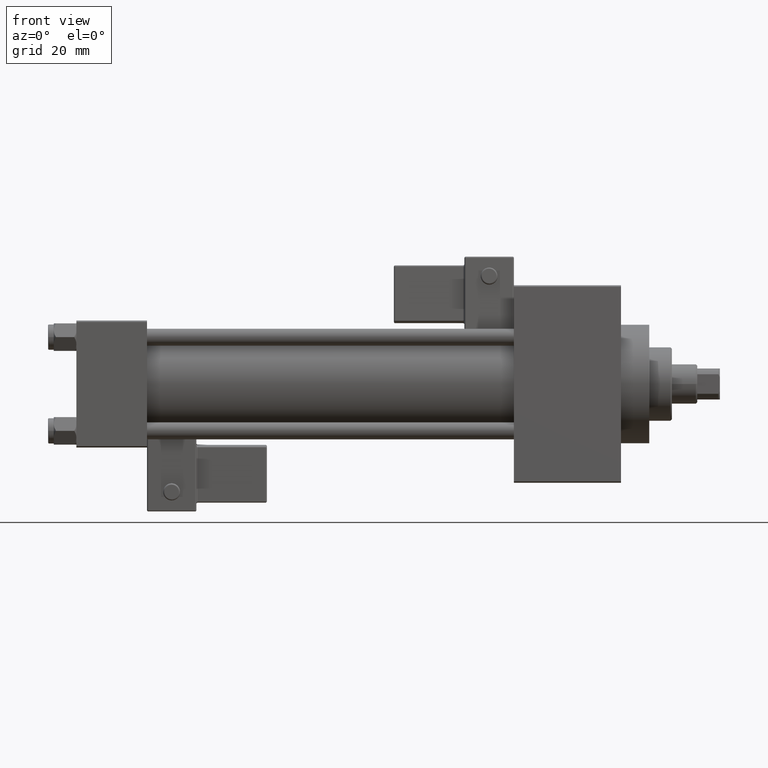
[diagram: clean part render]
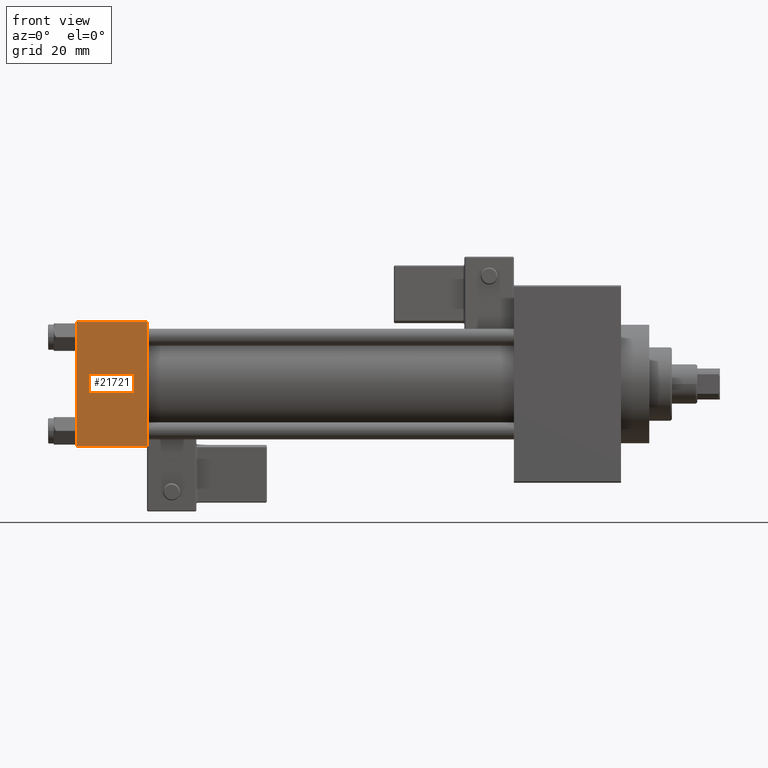
[diagram: same view with one face highlighted and labeled with its STEP entity id]
A machine part, front view. The second image highlights one B-rep face of the part: STEP entity #21721.
In plain terms, the highlighted planar face has unit normal (0, 1, 0).
Its self-contained STEP definition (entity closure, byte-faithful):
#635 = CARTESIAN_POINT ( 'NONE',  ( 25.00000000000000000, -22.50000000000000000, -21.99999999999998579 ) ) ;
#2180 = VECTOR ( 'NONE', #23844, 1000.000000000000000 ) ;
#3434 = ORIENTED_EDGE ( 'NONE', *, *, #24445, .F. ) ;
#4693 = ORIENTED_EDGE ( 'NONE', *, *, #27676, .T. ) ;
#4893 = CARTESIAN_POINT ( 'NONE',  ( 25.00000000000000000, -22.50000000000000000, 22.50000000000000000 ) ) ;
#5384 = LINE ( 'NONE', #4893, #10920 ) ;
#5494 = DIRECTION ( 'NONE',  ( -1.000000000000000000, 0.000000000000000000, 0.000000000000000000 ) ) ;
#7939 = CARTESIAN_POINT ( 'NONE',  ( 0.000000000000000000, -22.50000000000000000, -21.99999999999997158 ) ) ;
#7979 = EDGE_CURVE ( 'NONE', #32319, #17436, #22898, .T. ) ;
#8090 = VERTEX_POINT ( 'NONE', #28588 ) ;
#9401 = DIRECTION ( 'NONE',  ( 0.000000000000000000, 0.000000000000000000, -1.000000000000000000 ) ) ;
#10920 = VECTOR ( 'NONE', #9401, 1000.000000000000000 ) ;
#11869 = CARTESIAN_POINT ( 'NONE',  ( 0.000000000000000000, -22.50000000000000000, 22.50000000000000000 ) ) ;
#17436 = VERTEX_POINT ( 'NONE', #24948 ) ;
#18359 = PLANE ( 'NONE',  #41218 ) ;
#19640 = DIRECTION ( 'NONE',  ( 1.000000000000000000, 0.000000000000000000, 0.000000000000000000 ) ) ;
#19700 = ORIENTED_EDGE ( 'NONE', *, *, #25562, .T. ) ;
#20416 = EDGE_LOOP ( 'NONE', ( #19700, #28425, #3434, #4693 ) ) ;
#20828 = VECTOR ( 'NONE', #19640, 1000.000000000000000 ) ;
#21721 = ADVANCED_FACE ( 'NONE', ( #22112 ), #18359, .F. ) ;
#22112 = FACE_OUTER_BOUND ( 'NONE', #20416, .T. ) ;
#22898 = LINE ( 'NONE', #635, #20828 ) ;
#23844 = DIRECTION ( 'NONE',  ( 0.000000000000000000, 0.000000000000000000, -1.000000000000000000 ) ) ;
#24445 = EDGE_CURVE ( 'NONE', #8090, #17436, #5384, .T. ) ;
#24948 = CARTESIAN_POINT ( 'NONE',  ( 25.00000000000000000, -22.50000000000000000, -21.99999999999997158 ) ) ;
#25562 = EDGE_CURVE ( 'NONE', #38573, #32319, #42047, .T. ) ;
#25845 = DIRECTION ( 'NONE',  ( 0.000000000000000000, -0.000000000000000000, 1.000000000000000000 ) ) ;
#27676 = EDGE_CURVE ( 'NONE', #8090, #38573, #47707, .T. ) ;
#28425 = ORIENTED_EDGE ( 'NONE', *, *, #7979, .T. ) ;
#28588 = CARTESIAN_POINT ( 'NONE',  ( 25.00000000000000000, -22.50000000000000000, 22.00000000000000000 ) ) ;
#29576 = DIRECTION ( 'NONE',  ( -0.000000000000000000, 1.000000000000000000, 0.000000000000000000 ) ) ;
#30321 = CARTESIAN_POINT ( 'NONE',  ( 25.00000000000000000, -22.50000000000000000, 22.50000000000000000 ) ) ;
#31962 = CARTESIAN_POINT ( 'NONE',  ( 25.00000000000000000, -22.50000000000000000, 22.00000000000000000 ) ) ;
#32319 = VERTEX_POINT ( 'NONE', #7939 ) ;
#34953 = VECTOR ( 'NONE', #5494, 1000.000000000000000 ) ;
#37127 = CARTESIAN_POINT ( 'NONE',  ( 0.000000000000000000, -22.50000000000000000, 22.00000000000000000 ) ) ;
#38573 = VERTEX_POINT ( 'NONE', #37127 ) ;
#41218 = AXIS2_PLACEMENT_3D ( 'NONE', #30321, #29576, #25845 ) ;
#42047 = LINE ( 'NONE', #11869, #2180 ) ;
#47707 = LINE ( 'NONE', #31962, #34953 ) ;